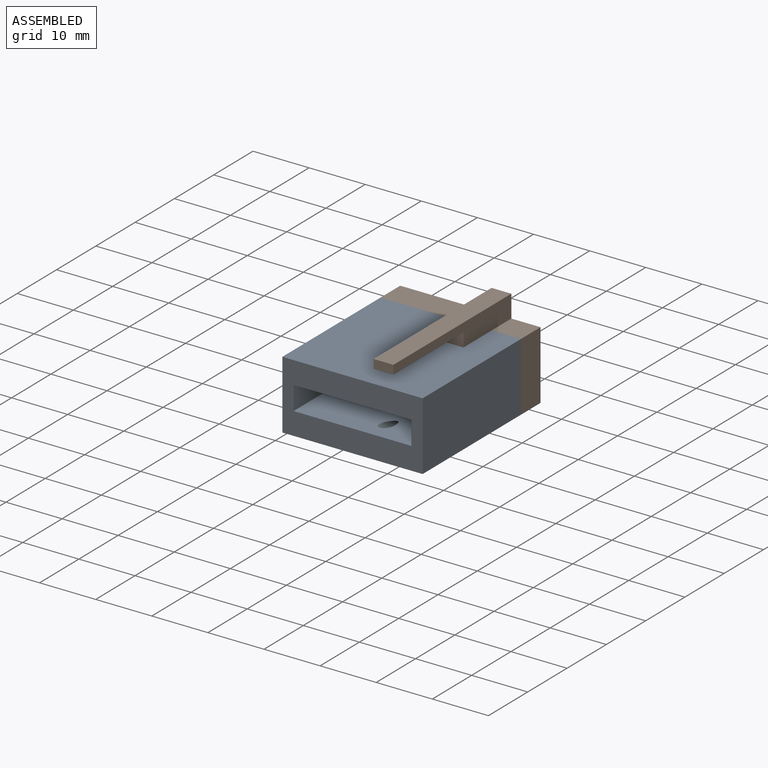
[diagram: assembled view]
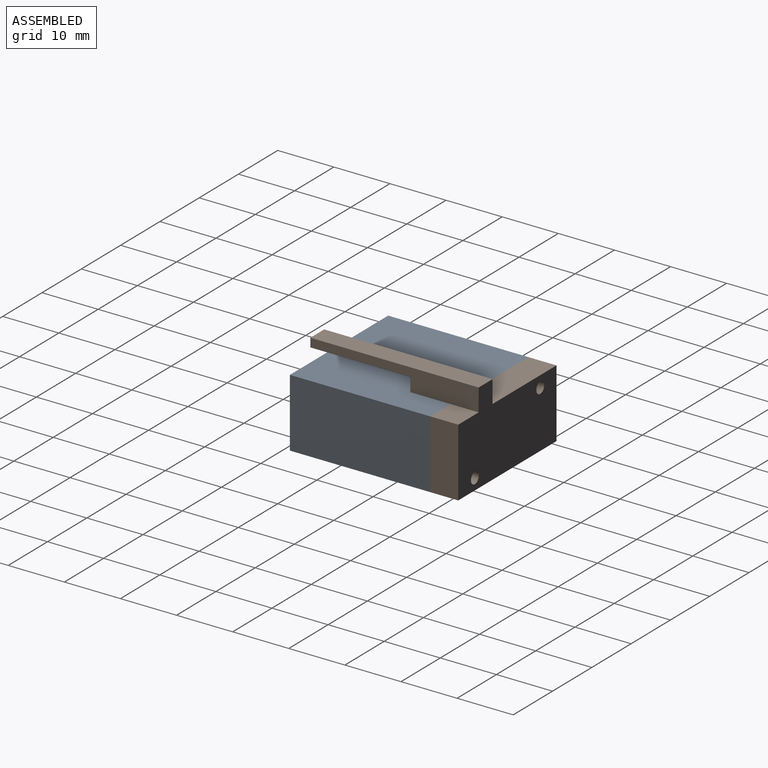
[diagram: assembled view, second angle]
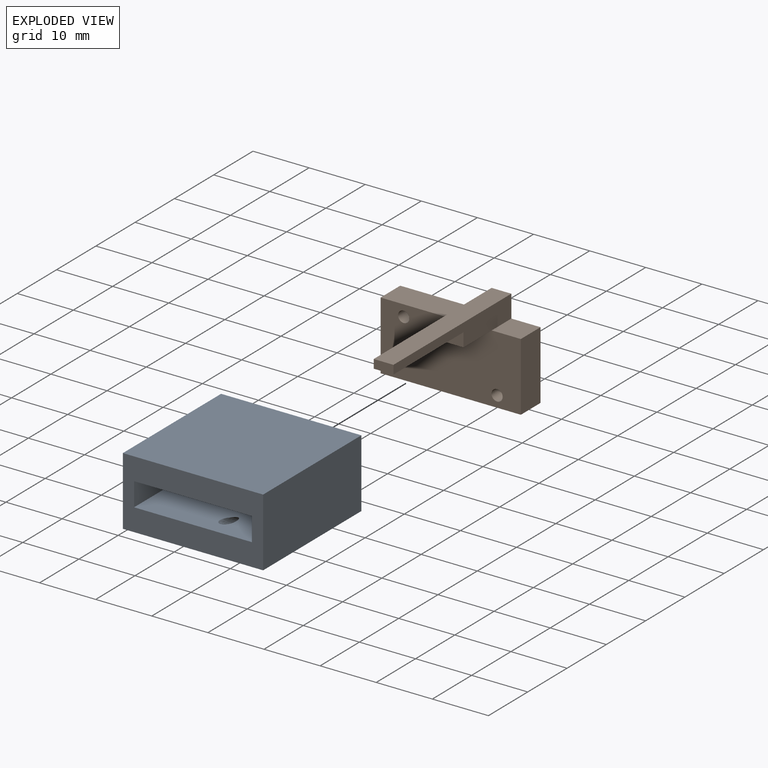
[diagram: exploded view]
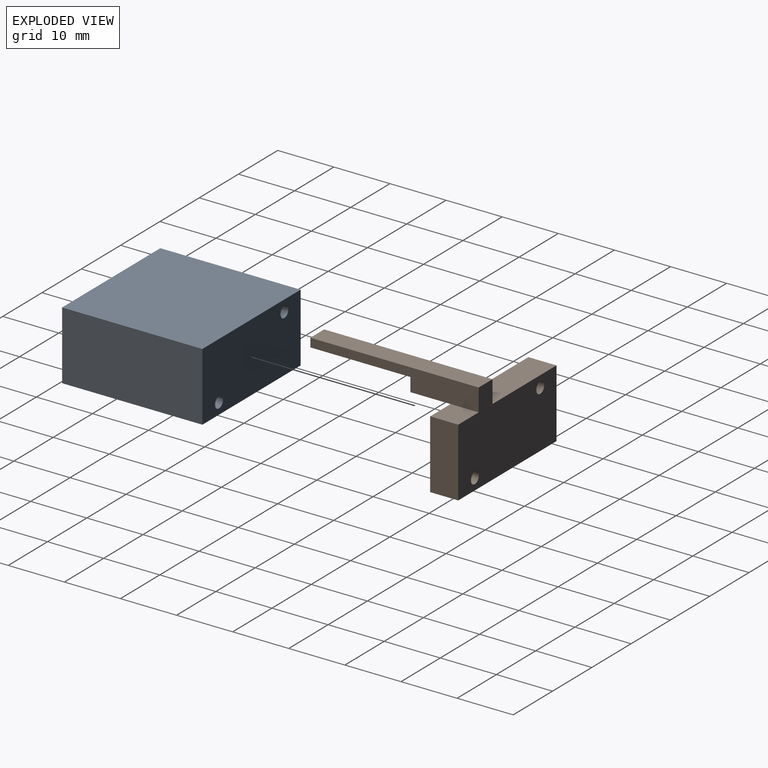
[diagram: exploded view, second angle]
ASSEMBLY  parts=2 mates=3
PART A: 13 faces, bbox 25.3x25.3x12.5 mm
  f0: plane 25x12.2mm, normal (0,-1,0), area 216.8mm2, adj f1,f2,f3,f4,f6,f7,f8,f9
  f1: plane 25x12.2mm, normal (-1,0,0), area 305mm2, adj f0,f2,f4,f5
  f2: plane 25x25mm, normal (0,0,-1), area 625mm2, adj f0,f1,f3,f5
  f3: plane 25x12.2mm, normal (1,0,0), area 305mm2, adj f0,f2,f4,f5
  f4: plane 25x25mm, normal (0,0,1), area 625mm2, adj f0,f1,f3,f5
  f5: plane 25.28x12.48mm, normal (0,1,0), area 298.7mm2, adj f1,f2,f3,f4,f11,f12
  f6: plane 20x4.2mm, normal (-1,0,0), area 84mm2, adj f0,f7,f9,f10
  f7: plane 21x20mm, normal (0,0,-1), area 414.6mm2, adj f0,f6,f8,f10,f12
  f8: plane 20x4.2mm, normal (1,0,0), area 84mm2, adj f0,f7,f9,f10
  f9: plane 21x20mm, normal (0,0,1), area 414.6mm2, adj f0,f6,f8,f10,f11
  f10: plane 21x4.2mm, normal (0,-1,0), area 88.2mm2, adj f6,f7,f8,f9
  f11: bspline ~22.52x7.05mm, area 138.2mm2, adj f5,f9
  f12: bspline ~22.5x7.19mm, area 138.4mm2, adj f5,f7
PART B: 16 faces, bbox 25x30x16.2 mm
  f0: plane 5.2x5mm, normal (0,0,1), area 26mm2, adj f6,f7,f8,f12
  f1: plane 25x5mm, normal (0,0,-1), area 125mm2, adj f2,f6,f7,f8
  f2: plane 12.2x5mm, normal (-1,0,0), area 61mm2, adj f1,f3,f7,f8
  f3: plane 16.28x5mm, normal (0,0,1), area 81.4mm2, adj f2,f7,f8,f10
  f4: cylinder r=1mm len=5mm, axis (0,-1,0), area 31.4mm2, adj f7,f8
  f5: cylinder r=1mm len=5mm, axis (0,-1,0), area 31.4mm2, adj f7,f8
  f6: plane 12.2x5mm, normal (1,0,0), area 61mm2, adj f0,f1,f7,f8
  f7: plane 25x16.2mm, normal (0,1,0), area 312.8mm2, adj f0,f1,f2,f3,f4,f5,f6,f10
  f8: plane 25x12.2mm, normal (0,-1,0), area 298.7mm2, adj f0,f1,f2,f3,f4,f5,f6,f9
  f9: plane 7.18x3.51mm, normal (0,0,-1), area 25.2mm2, adj f8,f10,f11,f12
  f10: plane 30x4mm, normal (-1,0,0), area 76.5mm2, adj f3,f7,f9,f11,f13,f14,f15
  f11: plane 3.51x2.44mm, normal (0,-1,0), area 8.6mm2, adj f9,f10,f12,f15
  f12: plane 30x4mm, normal (1,0,0), area 76.5mm2, adj f0,f7,f9,f11,f13,f14,f15
  f13: plane 30x3.51mm, normal (0,0,1), area 105.4mm2, adj f7,f10,f12,f14
  f14: plane 3.51x1.56mm, normal (0,-1,0), area 5.5mm2, adj f10,f12,f13,f15
  f15: plane 17.82x3.51mm, normal (0,0,-1), area 62.6mm2, adj f10,f11,f12,f14
PLACE A t=(-17.45,11.73,2.02)mm
PLACE B t=(-17.45,11.73,2.02)mm
MATE planar A.f5 <-> B.f8  axis (0,1,0) through (-17.45,36.73,2.02)mm
MATE planar A.f2 <-> B.f1  axis (0,0,-1) through (-17.45,24.23,-4.08)mm
MATE planar A.f3 <-> B.f6  axis (1,0,0) through (-4.95,24.23,2.02)mm
